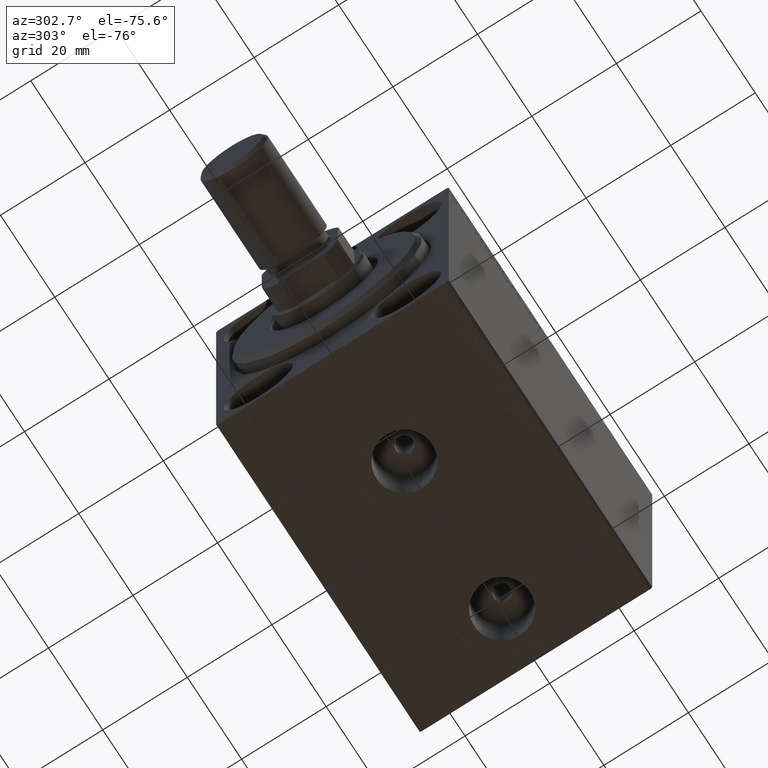
[diagram: clean part render]
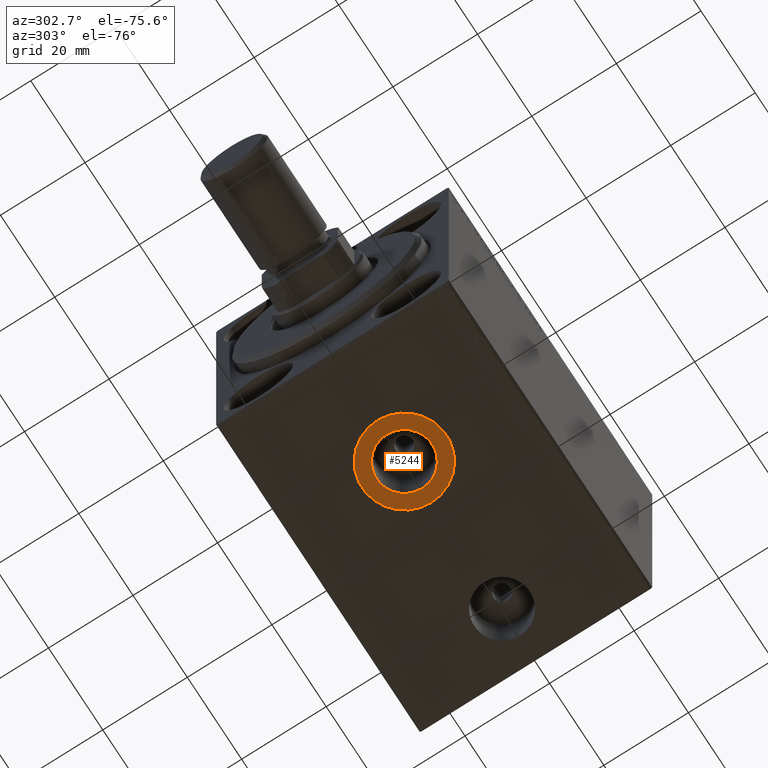
[diagram: same view with one face highlighted and labeled with its STEP entity id]
A machine part, auxiliary view. The second image highlights one B-rep face of the part: STEP entity #5244.
In plain terms, the highlighted planar face has unit normal (0, 0, -1).
Its self-contained STEP definition (entity closure, byte-faithful):
#887 = DIRECTION ( 'NONE',  ( -1.000000000000000000, 0.000000000000000000, 0.000000000000000000 ) ) ;
#1029 = CARTESIAN_POINT ( 'NONE',  ( 36.50000000000000000, -1.502339412261563813E-15, -37.39999999999999858 ) ) ;
#1621 = EDGE_LOOP ( 'NONE', ( #24930, #5028 ) ) ;
#2068 = ORIENTED_EDGE ( 'NONE', *, *, #12198, .T. ) ;
#3843 = AXIS2_PLACEMENT_3D ( 'NONE', #4476, #41574, #887 ) ;
#4476 = CARTESIAN_POINT ( 'NONE',  ( 26.50000000000000000, -2.726986211408916281E-15, -37.39999999999999858 ) ) ;
#4815 = VERTEX_POINT ( 'NONE', #1029 ) ;
#5028 = ORIENTED_EDGE ( 'NONE', *, *, #33088, .F. ) ;
#5072 = CIRCLE ( 'NONE', #15103, 6.580000000000002736 ) ;
#5244 = ADVANCED_FACE ( 'NONE', ( #43429, #23658 ), #44318, .T. ) ;
#7551 = DIRECTION ( 'NONE',  ( 0.000000000000000000, 0.000000000000000000, -1.000000000000000000 ) ) ;
#8042 = VERTEX_POINT ( 'NONE', #27863 ) ;
#8302 = CIRCLE ( 'NONE', #25494, 9.999999999999998224 ) ;
#8602 = AXIS2_PLACEMENT_3D ( 'NONE', #32609, #15534, #29242 ) ;
#9231 = EDGE_CURVE ( 'NONE', #8042, #4815, #8302, .T. ) ;
#9282 = DIRECTION ( 'NONE',  ( 0.000000000000000000, 0.000000000000000000, -1.000000000000000000 ) ) ;
#9507 = CARTESIAN_POINT ( 'NONE',  ( 0.000000000000000000, 0.000000000000000000, -37.39999999999999858 ) ) ;
#10047 = DIRECTION ( 'NONE',  ( -1.000000000000000000, 0.000000000000000000, 0.000000000000000000 ) ) ;
#11567 = VERTEX_POINT ( 'NONE', #34370 ) ;
#12198 = EDGE_CURVE ( 'NONE', #4815, #8042, #29706, .T. ) ;
#12876 = DIRECTION ( 'NONE',  ( -1.000000000000000000, 0.000000000000000000, -0.000000000000000000 ) ) ;
#15103 = AXIS2_PLACEMENT_3D ( 'NONE', #39462, #22166, #35870 ) ;
#15534 = DIRECTION ( 'NONE',  ( 0.000000000000000000, 0.000000000000000000, -1.000000000000000000 ) ) ;
#17442 = CARTESIAN_POINT ( 'NONE',  ( 26.50000000000000000, -2.726986211408916281E-15, -37.39999999999999858 ) ) ;
#18022 = CARTESIAN_POINT ( 'NONE',  ( 33.07999999999999829, -1.921168617569957634E-15, -37.39999999999999858 ) ) ;
#19103 = EDGE_LOOP ( 'NONE', ( #19486, #2068 ) ) ;
#19155 = VERTEX_POINT ( 'NONE', #18022 ) ;
#19486 = ORIENTED_EDGE ( 'NONE', *, *, #9231, .T. ) ;
#22166 = DIRECTION ( 'NONE',  ( 0.000000000000000000, 0.000000000000000000, -1.000000000000000000 ) ) ;
#23658 = FACE_OUTER_BOUND ( 'NONE', #19103, .T. ) ;
#24930 = ORIENTED_EDGE ( 'NONE', *, *, #36238, .F. ) ;
#25494 = AXIS2_PLACEMENT_3D ( 'NONE', #17442, #7551, #10047 ) ;
#27863 = CARTESIAN_POINT ( 'NONE',  ( 16.50000000000000000, -2.726986211408916281E-15, -37.39999999999999858 ) ) ;
#29242 = DIRECTION ( 'NONE',  ( -1.000000000000000000, 0.000000000000000000, 0.000000000000000000 ) ) ;
#29706 = CIRCLE ( 'NONE', #3843, 9.999999999999998224 ) ;
#32609 = CARTESIAN_POINT ( 'NONE',  ( 26.50000000000000000, -2.726986211408916281E-15, -37.39999999999999858 ) ) ;
#33088 = EDGE_CURVE ( 'NONE', #19155, #11567, #38721, .T. ) ;
#34370 = CARTESIAN_POINT ( 'NONE',  ( 19.91999999999999815, -2.726986211408916281E-15, -37.39999999999999858 ) ) ;
#35870 = DIRECTION ( 'NONE',  ( -1.000000000000000000, 0.000000000000000000, 0.000000000000000000 ) ) ;
#36238 = EDGE_CURVE ( 'NONE', #11567, #19155, #5072, .T. ) ;
#37715 = AXIS2_PLACEMENT_3D ( 'NONE', #9507, #9282, #12876 ) ;
#38721 = CIRCLE ( 'NONE', #8602, 6.580000000000002736 ) ;
#39462 = CARTESIAN_POINT ( 'NONE',  ( 26.50000000000000000, -2.726986211408916281E-15, -37.39999999999999858 ) ) ;
#41574 = DIRECTION ( 'NONE',  ( 0.000000000000000000, 0.000000000000000000, -1.000000000000000000 ) ) ;
#43429 = FACE_BOUND ( 'NONE', #1621, .T. ) ;
#44318 = PLANE ( 'NONE',  #37715 ) ;